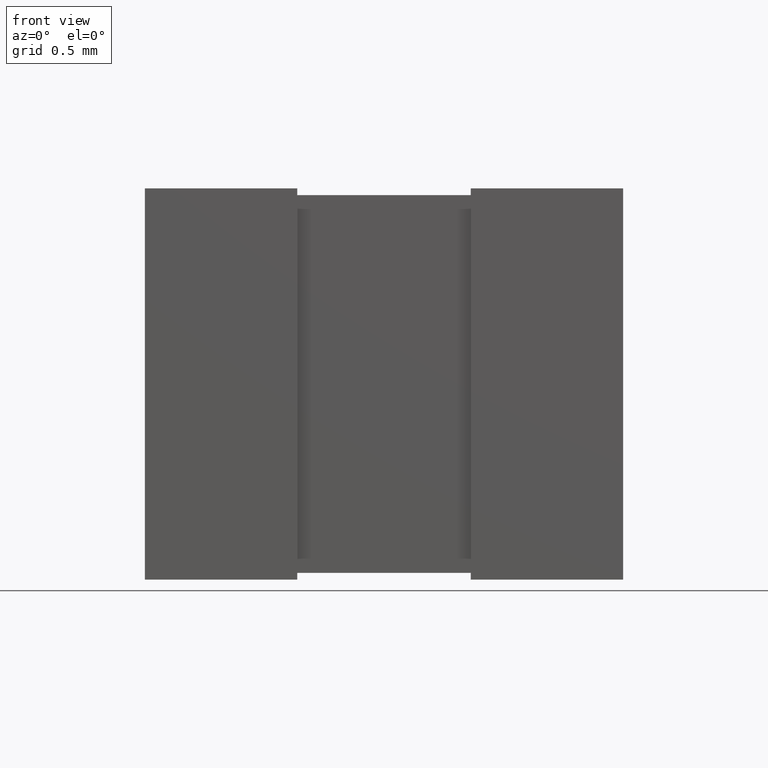
[diagram: clean part render]
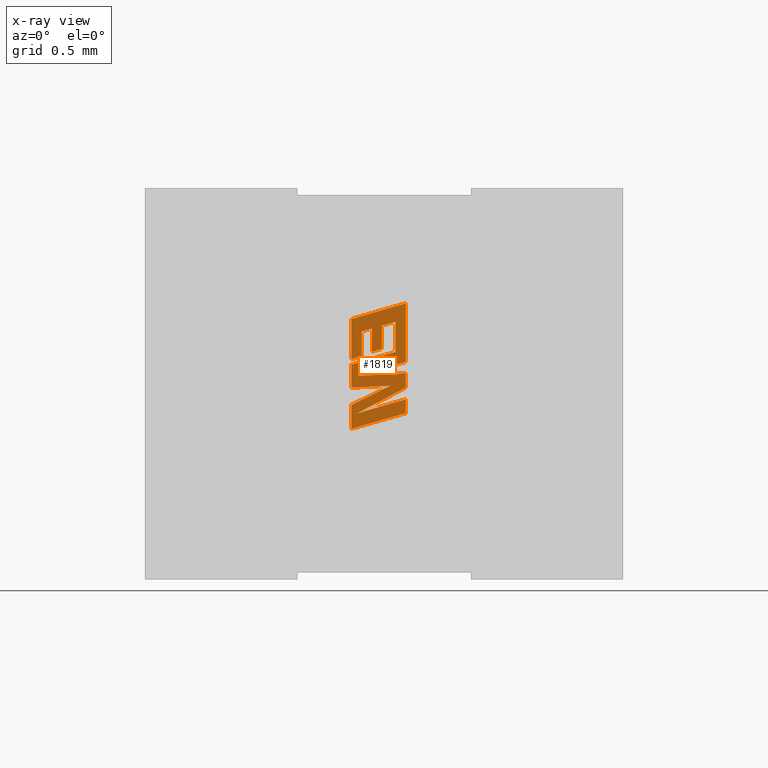
[diagram: x-ray — body ghosted, one internal face saturated and labeled with its STEP entity id]
A machine part, front view, then the same camera in x-ray: the body is ghosted and one INTERNAL B-rep face — a face not visible from any outside direction — is saturated and labeled: STEP entity #1819.
In plain terms, the highlighted planar face has unit normal (-0, -1, -0).
Its self-contained STEP definition (entity closure, byte-faithful):
#7 = ORIENTED_EDGE ( 'NONE', *, *, #131, .F. ) ;
#37 = DIRECTION ( 'NONE',  ( -5.887531099066825600E-033, -2.426065257176612000E-017, 1.000000000000000000 ) ) ;
#58 = LINE ( 'NONE', #454, #1697 ) ;
#64 = LINE ( 'NONE', #2465, #1402 ) ;
#97 = ORIENTED_EDGE ( 'NONE', *, *, #201, .F. ) ;
#101 = ORIENTED_EDGE ( 'NONE', *, *, #1197, .F. ) ;
#110 = VERTEX_POINT ( 'NONE', #1552 ) ;
#116 = EDGE_CURVE ( 'NONE', #1338, #1564, #403, .T. ) ;
#128 = DIRECTION ( 'NONE',  ( 5.887531099066827000E-033, 2.426065257176610200E-017, -1.000000000000000000 ) ) ;
#131 = EDGE_CURVE ( 'NONE', #2261, #2377, #1523, .T. ) ;
#150 = LINE ( 'NONE', #2485, #181 ) ;
#172 = AXIS2_PLACEMENT_3D ( 'NONE', #2497, #766, #940 ) ;
#176 = CARTESIAN_POINT ( 'NONE',  ( 1.044011067979251100, 1.768966199999999700, -0.7526185742584863300 ) ) ;
#181 = VECTOR ( 'NONE', #902, 1000.000000000000000 ) ;
#182 = EDGE_CURVE ( 'NONE', #1981, #1221, #1911, .T. ) ;
#186 = CARTESIAN_POINT ( 'NONE',  ( 0.9772816017287141400, 1.768966199999999500, -0.8629893821541584400 ) ) ;
#201 = EDGE_CURVE ( 'NONE', #1564, #663, #1064, .T. ) ;
#219 = VECTOR ( 'NONE', #1732, 1000.000000000000000 ) ;
#264 = VECTOR ( 'NONE', #723, 1000.000000000000000 ) ;
#267 = ORIENTED_EDGE ( 'NONE', *, *, #1138, .F. ) ;
#297 = LINE ( 'NONE', #641, #2301 ) ;
#320 = ORIENTED_EDGE ( 'NONE', *, *, #2164, .F. ) ;
#349 = ORIENTED_EDGE ( 'NONE', *, *, #1296, .F. ) ;
#360 = DIRECTION ( 'NONE',  ( -0.9617234872620599200, 6.449317853406210500E-017, -0.2740217765954055000 ) ) ;
#383 = ORIENTED_EDGE ( 'NONE', *, *, #544, .F. ) ;
#394 = DIRECTION ( 'NONE',  ( -0.9611638845408402300, 6.450698484348176300E-017, -0.2759782365592664000 ) ) ;
#397 = EDGE_CURVE ( 'NONE', #1989, #1981, #1945, .T. ) ;
#403 = LINE ( 'NONE', #1343, #907 ) ;
#424 = LINE ( 'NONE', #869, #2452 ) ;
#437 = ORIENTED_EDGE ( 'NONE', *, *, #2274, .F. ) ;
#454 = CARTESIAN_POINT ( 'NONE',  ( 1.200099999999999900, 1.768966199999999500, -0.9711213141498686900 ) ) ;
#484 = DIRECTION ( 'NONE',  ( 5.887531099066827000E-033, 2.426065257176610200E-017, -1.000000000000000000 ) ) ;
#485 = LINE ( 'NONE', #1321, #1451 ) ;
#488 = LINE ( 'NONE', #1482, #1388 ) ;
#500 = DIRECTION ( 'NONE',  ( -0.9985542843760937300, 6.136458351858177500E-017, -0.05375259206910180900 ) ) ;
#512 = FACE_OUTER_BOUND ( 'NONE', #1078, .T. ) ;
#520 = CARTESIAN_POINT ( 'NONE',  ( 0.9772816017287141400, 1.768966199999999500, -0.8629893821541584400 ) ) ;
#523 = VECTOR ( 'NONE', #360, 1000.000000000000100 ) ;
#535 = CARTESIAN_POINT ( 'NONE',  ( 0.9974588828019515000, 1.768966199999999500, -0.7727715031783797300 ) ) ;
#544 = EDGE_CURVE ( 'NONE', #1991, #1344, #2099, .T. ) ;
#545 = DIRECTION ( 'NONE',  ( 5.887531099066825600E-033, 2.426065257176612000E-017, -1.000000000000000000 ) ) ;
#546 = LINE ( 'NONE', #1993, #697 ) ;
#552 = VECTOR ( 'NONE', #37, 1000.000000000000000 ) ;
#600 = VERTEX_POINT ( 'NONE', #1706 ) ;
#624 = EDGE_CURVE ( 'NONE', #663, #2494, #1550, .T. ) ;
#625 = ORIENTED_EDGE ( 'NONE', *, *, #1756, .F. ) ;
#641 = CARTESIAN_POINT ( 'NONE',  ( 1.200099999999999900, 1.768966199999999300, -1.034721528692794700 ) ) ;
#663 = VERTEX_POINT ( 'NONE', #785 ) ;
#674 = VECTOR ( 'NONE', #1157, 1000.000000000000000 ) ;
#683 = VERTEX_POINT ( 'NONE', #1926 ) ;
#689 = ORIENTED_EDGE ( 'NONE', *, *, #116, .F. ) ;
#697 = VECTOR ( 'NONE', #833, 1000.000000000000200 ) ;
#709 = CARTESIAN_POINT ( 'NONE',  ( 0.9974588828019515000, 1.768966199999999500, -0.6587410230345505100 ) ) ;
#722 = DIRECTION ( 'NONE',  ( -0.9615454294334472300, 6.449761118757585800E-017, -0.2746459304916925600 ) ) ;
#723 = DIRECTION ( 'NONE',  ( 5.887531099066825600E-033, 2.426065257176612000E-017, -1.000000000000000000 ) ) ;
#731 = CARTESIAN_POINT ( 'NONE',  ( 1.128623025452635500, 1.768966199999999500, -0.9082268153885770800 ) ) ;
#766 = DIRECTION ( 'NONE',  ( -6.014746668989340800E-017, -1.000000000000000000, -2.426065257176612000E-017 ) ) ;
#767 = CARTESIAN_POINT ( 'NONE',  ( 1.152483930121980200, 1.768966199999999500, -0.7530127747403588800 ) ) ;
#785 = CARTESIAN_POINT ( 'NONE',  ( 1.152483930121980200, 1.768966199999999500, -0.6142709469688165700 ) ) ;
#797 = EDGE_CURVE ( 'NONE', #1671, #1623, #1328, .T. ) ;
#811 = DIRECTION ( 'NONE',  ( 0.9610029908221285900, -6.451088711434302400E-017, 0.2765379750249930000 ) ) ;
#833 = DIRECTION ( 'NONE',  ( -0.8843386665636737700, 6.451671741402206000E-017, -0.4668459304956865100 ) ) ;
#854 = CARTESIAN_POINT ( 'NONE',  ( 1.152483930121980200, 1.768966199999999500, -0.7530127747403588800 ) ) ;
#865 = VECTOR ( 'NONE', #811, 1000.000000000000100 ) ;
#869 = CARTESIAN_POINT ( 'NONE',  ( 1.128623025452635500, 1.768966199999999500, -0.9082268153885770800 ) ) ;
#870 = EDGE_CURVE ( 'NONE', #2319, #1181, #58, .T. ) ;
#902 = DIRECTION ( 'NONE',  ( -5.887531099066825600E-033, -2.426065257176612000E-017, 1.000000000000000000 ) ) ;
#903 = CARTESIAN_POINT ( 'NONE',  ( 1.090279398368933200, 1.768966199999999500, -0.6319947485906134400 ) ) ;
#907 = VECTOR ( 'NONE', #1936, 1000.000000000000200 ) ;
#924 = VECTOR ( 'NONE', #1354, 1000.000000000000100 ) ;
#940 = DIRECTION ( 'NONE',  ( 5.887531099066825600E-033, 2.426065257176612000E-017, -1.000000000000000000 ) ) ;
#951 = EDGE_CURVE ( 'NONE', #1181, #1989, #297, .T. ) ;
#954 = VECTOR ( 'NONE', #2118, 1000.000000000000200 ) ;
#968 = ORIENTED_EDGE ( 'NONE', *, *, #870, .F. ) ;
#1047 = CARTESIAN_POINT ( 'NONE',  ( 0.9498192217758174600, 1.768966199999999500, -0.7863021683924508200 ) ) ;
#1061 = VECTOR ( 'NONE', #2291, 1000.000000000000000 ) ;
#1064 = LINE ( 'NONE', #767, #219 ) ;
#1078 = EDGE_LOOP ( 'NONE', ( #1251, #2369, #968, #625, #1303, #1242, #320, #7, #267, #1713, #101, #2143, #383, #349, #1305, #1280, #437, #1129, #97, #689, #1922, #2343, #1536 ) ) ;
#1085 = CARTESIAN_POINT ( 'NONE',  ( 1.044011067979251100, 1.768966199999999500, -0.6451951377246518700 ) ) ;
#1093 = DIRECTION ( 'NONE',  ( -0.9601763114327620500, 6.453047273805148500E-017, -0.2793947940878201400 ) ) ;
#1103 = CARTESIAN_POINT ( 'NONE',  ( 0.9498192217758174600, 1.768966199999999500, -0.8112661696113253600 ) ) ;
#1129 = ORIENTED_EDGE ( 'NONE', *, *, #624, .F. ) ;
#1138 = EDGE_CURVE ( 'NONE', #600, #2261, #64, .T. ) ;
#1145 = CARTESIAN_POINT ( 'NONE',  ( 1.090279398368933200, 1.768966199999999500, -0.6319947485906134400 ) ) ;
#1151 = EDGE_CURVE ( 'NONE', #1718, #1338, #2217, .T. ) ;
#1156 = PLANE ( 'NONE',  #172 ) ;
#1157 = DIRECTION ( 'NONE',  ( 0.8958676361826948300, -6.466368696521864600E-017, 0.4443210308329223500 ) ) ;
#1167 = EDGE_CURVE ( 'NONE', #2503, #1671, #488, .T. ) ;
#1168 = VERTEX_POINT ( 'NONE', #1309 ) ;
#1181 = VERTEX_POINT ( 'NONE', #2075 ) ;
#1185 = CARTESIAN_POINT ( 'NONE',  ( 0.9498192217758174600, 1.768966199999999500, -0.6014031169308583500 ) ) ;
#1197 = EDGE_CURVE ( 'NONE', #2085, #683, #150, .T. ) ;
#1198 = CARTESIAN_POINT ( 'NONE',  ( 1.200099999999999900, 1.768966199999999500, -0.8504997714966766600 ) ) ;
#1221 = VERTEX_POINT ( 'NONE', #731 ) ;
#1242 = ORIENTED_EDGE ( 'NONE', *, *, #2294, .F. ) ;
#1251 = ORIENTED_EDGE ( 'NONE', *, *, #397, .F. ) ;
#1267 = CARTESIAN_POINT ( 'NONE',  ( 0.9498192217758174600, 1.768966199999999300, -1.106679097868822800 ) ) ;
#1280 = ORIENTED_EDGE ( 'NONE', *, *, #1167, .F. ) ;
#1293 = CARTESIAN_POINT ( 'NONE',  ( 1.200099999999999900, 1.768966199999999500, -0.9711213141498686900 ) ) ;
#1296 = EDGE_CURVE ( 'NONE', #1623, #1991, #1725, .T. ) ;
#1303 = ORIENTED_EDGE ( 'NONE', *, *, #1914, .F. ) ;
#1305 = ORIENTED_EDGE ( 'NONE', *, *, #797, .F. ) ;
#1309 = CARTESIAN_POINT ( 'NONE',  ( 1.200099999999999900, 1.768966199999999500, -0.9172223887039442400 ) ) ;
#1321 = CARTESIAN_POINT ( 'NONE',  ( 0.9974588828019515000, 1.768966199999999500, -0.7727715031783797300 ) ) ;
#1328 = LINE ( 'NONE', #2158, #552 ) ;
#1333 = CARTESIAN_POINT ( 'NONE',  ( 0.9498192217758174600, 1.768966199999999500, -0.9969076507685146200 ) ) ;
#1337 = DIRECTION ( 'NONE',  ( -0.9619530280415614600, 6.448740904524546700E-017, -0.2732148821745822900 ) ) ;
#1338 = VERTEX_POINT ( 'NONE', #1103 ) ;
#1343 = CARTESIAN_POINT ( 'NONE',  ( 0.9498192217758174600, 1.768966199999999500, -0.8112661696113253600 ) ) ;
#1344 = VERTEX_POINT ( 'NONE', #535 ) ;
#1354 = DIRECTION ( 'NONE',  ( 0.9984327301130131400, -6.141094727764789200E-017, 0.05596501978088726900 ) ) ;
#1388 = VECTOR ( 'NONE', #722, 1000.000000000000000 ) ;
#1402 = VECTOR ( 'NONE', #545, 1000.000000000000000 ) ;
#1426 = CARTESIAN_POINT ( 'NONE',  ( 0.9498192217758174600, 1.768966199999999300, -1.106679097868822800 ) ) ;
#1451 = VECTOR ( 'NONE', #1337, 1000.000000000000100 ) ;
#1482 = CARTESIAN_POINT ( 'NONE',  ( 1.090279398368933200, 1.768966199999999500, -0.7394029650286045900 ) ) ;
#1490 = CARTESIAN_POINT ( 'NONE',  ( 1.200099999999999900, 1.768966199999999500, -0.8504997714966766600 ) ) ;
#1501 = EDGE_CURVE ( 'NONE', #1221, #1718, #424, .T. ) ;
#1520 = VECTOR ( 'NONE', #1806, 1000.000000000000000 ) ;
#1523 = LINE ( 'NONE', #2499, #2460 ) ;
#1536 = ORIENTED_EDGE ( 'NONE', *, *, #182, .F. ) ;
#1550 = LINE ( 'NONE', #1909, #523 ) ;
#1552 = CARTESIAN_POINT ( 'NONE',  ( 0.9762085849715667100, 1.768966199999999300, -1.035415565063737600 ) ) ;
#1564 = VERTEX_POINT ( 'NONE', #854 ) ;
#1623 = VERTEX_POINT ( 'NONE', #2166 ) ;
#1671 = VERTEX_POINT ( 'NONE', #176 ) ;
#1690 = CARTESIAN_POINT ( 'NONE',  ( 1.200099999999999900, 1.768966199999999500, -0.7990117092339513700 ) ) ;
#1697 = VECTOR ( 'NONE', #484, 1000.000000000000000 ) ;
#1706 = CARTESIAN_POINT ( 'NONE',  ( 1.200099999999999900, 1.768966199999999500, -0.5293823841560468800 ) ) ;
#1713 = ORIENTED_EDGE ( 'NONE', *, *, #1856, .F. ) ;
#1718 = VERTEX_POINT ( 'NONE', #1737 ) ;
#1719 = CARTESIAN_POINT ( 'NONE',  ( 0.9762085849715667100, 1.768966199999999300, -1.035415565063737600 ) ) ;
#1721 = EDGE_CURVE ( 'NONE', #1344, #2085, #485, .T. ) ;
#1725 = LINE ( 'NONE', #1085, #2036 ) ;
#1732 = DIRECTION ( 'NONE',  ( -5.887531099066825600E-033, -2.426065257176612000E-017, 1.000000000000000000 ) ) ;
#1737 = CARTESIAN_POINT ( 'NONE',  ( 0.9498192217758174600, 1.768966199999999500, -0.9178518984409710400 ) ) ;
#1756 = EDGE_CURVE ( 'NONE', #110, #2319, #1934, .T. ) ;
#1806 = DIRECTION ( 'NONE',  ( -5.887531099066827000E-033, -2.426065257176610200E-017, 1.000000000000000000 ) ) ;
#1819 = ADVANCED_FACE ( 'NONE', ( #512 ), #1156, .T. ) ;
#1843 = CARTESIAN_POINT ( 'NONE',  ( 0.9498192217758174600, 1.768966199999999500, -0.9969076507685146200 ) ) ;
#1856 = EDGE_CURVE ( 'NONE', #683, #600, #2424, .T. ) ;
#1909 = CARTESIAN_POINT ( 'NONE',  ( 1.152483930121980200, 1.768966199999999500, -0.6142709469688165700 ) ) ;
#1911 = LINE ( 'NONE', #1333, #674 ) ;
#1914 = EDGE_CURVE ( 'NONE', #1168, #110, #546, .T. ) ;
#1916 = VERTEX_POINT ( 'NONE', #1198 ) ;
#1922 = ORIENTED_EDGE ( 'NONE', *, *, #1151, .F. ) ;
#1926 = CARTESIAN_POINT ( 'NONE',  ( 0.9498192217758174600, 1.768966199999999500, -0.6014031169308583500 ) ) ;
#1931 = CARTESIAN_POINT ( 'NONE',  ( 1.090279398368933200, 1.768966199999999500, -0.7394029650286045900 ) ) ;
#1934 = LINE ( 'NONE', #1719, #954 ) ;
#1936 = DIRECTION ( 'NONE',  ( 0.9610853065513876900, -6.450889437339623500E-017, 0.2762517575166265100 ) ) ;
#1945 = LINE ( 'NONE', #1426, #1520 ) ;
#1981 = VERTEX_POINT ( 'NONE', #1843 ) ;
#1989 = VERTEX_POINT ( 'NONE', #1267 ) ;
#1991 = VERTEX_POINT ( 'NONE', #2242 ) ;
#1993 = CARTESIAN_POINT ( 'NONE',  ( 1.200099999999999900, 1.768966199999999500, -0.9172223887039442400 ) ) ;
#1994 = LINE ( 'NONE', #903, #264 ) ;
#2036 = VECTOR ( 'NONE', #1093, 1000.000000000000200 ) ;
#2075 = CARTESIAN_POINT ( 'NONE',  ( 1.200099999999999900, 1.768966199999999300, -1.034721528692794700 ) ) ;
#2085 = VERTEX_POINT ( 'NONE', #1047 ) ;
#2099 = LINE ( 'NONE', #709, #2159 ) ;
#2114 = LINE ( 'NONE', #186, #924 ) ;
#2118 = DIRECTION ( 'NONE',  ( 0.9611542233438126200, -6.450722000480603100E-017, 0.2760118818970521700 ) ) ;
#2143 = ORIENTED_EDGE ( 'NONE', *, *, #1721, .F. ) ;
#2158 = CARTESIAN_POINT ( 'NONE',  ( 1.044011067979251100, 1.768966199999999700, -0.7526185742584863300 ) ) ;
#2159 = VECTOR ( 'NONE', #2252, 1000.000000000000000 ) ;
#2164 = EDGE_CURVE ( 'NONE', #2377, #1916, #2114, .T. ) ;
#2166 = CARTESIAN_POINT ( 'NONE',  ( 1.044011067979251100, 1.768966199999999500, -0.6451951377246518700 ) ) ;
#2188 = DIRECTION ( 'NONE',  ( -0.9610674221107118300, 6.450932799120076900E-017, -0.2763139702538958700 ) ) ;
#2217 = LINE ( 'NONE', #2266, #1061 ) ;
#2242 = CARTESIAN_POINT ( 'NONE',  ( 0.9974588828019515000, 1.768966199999999500, -0.6587410230345505100 ) ) ;
#2252 = DIRECTION ( 'NONE',  ( 5.887531099066825600E-033, 2.426065257176612000E-017, -1.000000000000000000 ) ) ;
#2261 = VERTEX_POINT ( 'NONE', #1690 ) ;
#2266 = CARTESIAN_POINT ( 'NONE',  ( 0.9498192217758174600, 1.768966199999999500, -0.9178518984409710400 ) ) ;
#2274 = EDGE_CURVE ( 'NONE', #2494, #2503, #1994, .T. ) ;
#2291 = DIRECTION ( 'NONE',  ( -5.887531099066825600E-033, -2.426065257176612000E-017, 1.000000000000000000 ) ) ;
#2292 = LINE ( 'NONE', #1490, #2352 ) ;
#2294 = EDGE_CURVE ( 'NONE', #1916, #1168, #2292, .T. ) ;
#2301 = VECTOR ( 'NONE', #2188, 1000.000000000000100 ) ;
#2319 = VERTEX_POINT ( 'NONE', #1293 ) ;
#2343 = ORIENTED_EDGE ( 'NONE', *, *, #1501, .F. ) ;
#2352 = VECTOR ( 'NONE', #128, 1000.000000000000000 ) ;
#2369 = ORIENTED_EDGE ( 'NONE', *, *, #951, .F. ) ;
#2377 = VERTEX_POINT ( 'NONE', #520 ) ;
#2424 = LINE ( 'NONE', #1185, #865 ) ;
#2452 = VECTOR ( 'NONE', #500, 1000.000000000000000 ) ;
#2460 = VECTOR ( 'NONE', #394, 1000.000000000000100 ) ;
#2465 = CARTESIAN_POINT ( 'NONE',  ( 1.200099999999999900, 1.768966199999999500, -0.7544624886708252200 ) ) ;
#2485 = CARTESIAN_POINT ( 'NONE',  ( 0.9498192217758174600, 1.768966199999999500, -0.7863021683924508200 ) ) ;
#2494 = VERTEX_POINT ( 'NONE', #1145 ) ;
#2497 = CARTESIAN_POINT ( 'NONE',  ( -0.2511059422511678900, 1.768966199999999500, -0.03665713865411493500 ) ) ;
#2499 = CARTESIAN_POINT ( 'NONE',  ( 1.200099999999999900, 1.768966199999999500, -0.7990117092339513700 ) ) ;
#2503 = VERTEX_POINT ( 'NONE', #1931 ) ;